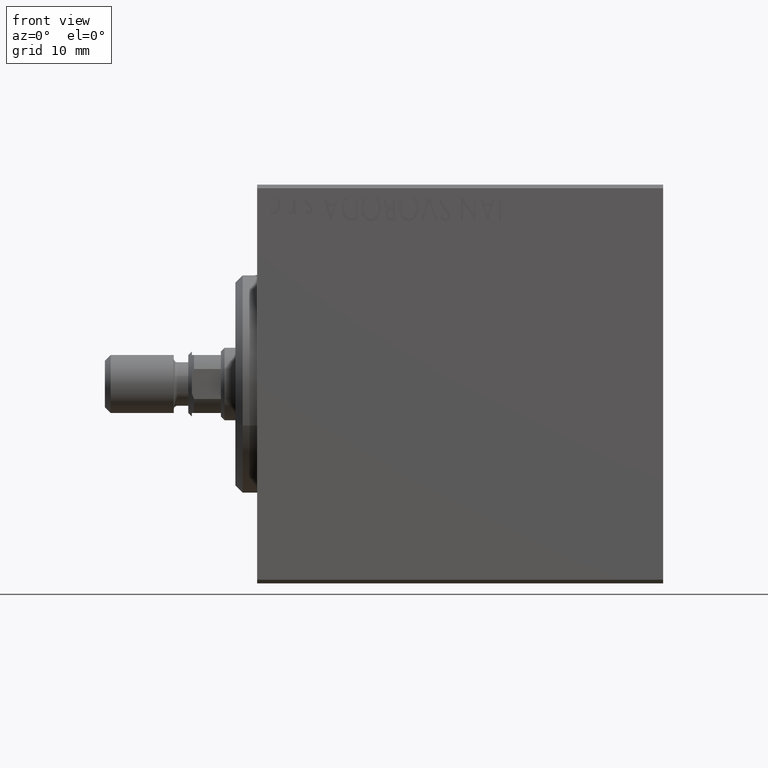
[diagram: clean part render]
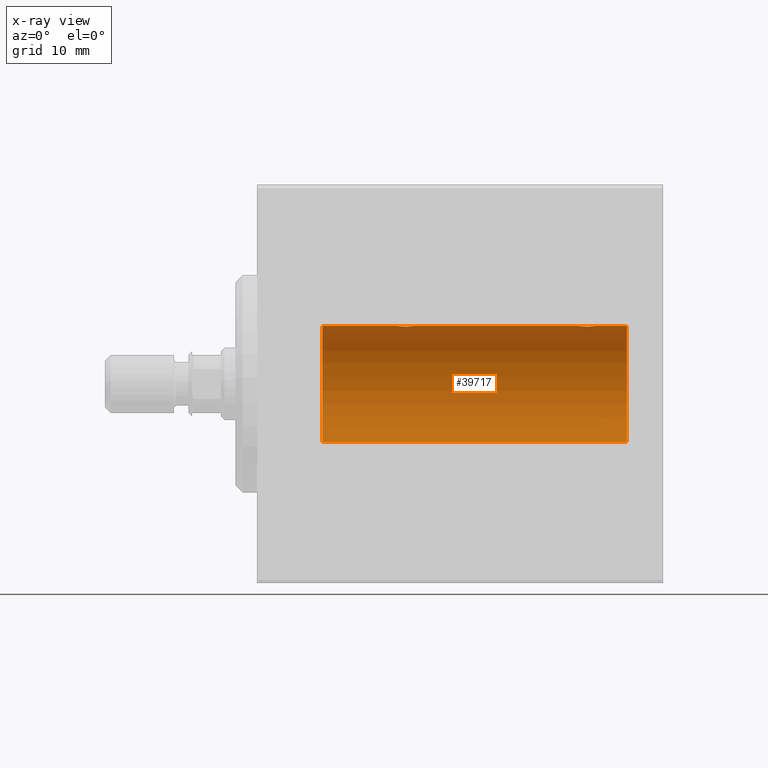
[diagram: x-ray — body ghosted, one internal face saturated and labeled with its STEP entity id]
A machine part, front view, then the same camera in x-ray: the body is ghosted and one INTERNAL B-rep face — a face not visible from any outside direction — is saturated and labeled: STEP entity #39717.
In plain terms, the highlighted cylindrical surface (partial cylindrical patch) has radius 8 mm, axis along (-1, -0, -0).
Its self-contained STEP definition (entity closure, byte-faithful):
#202 = CARTESIAN_POINT ( 'NONE',  ( 9.000000000000001776, 0.000000000000000000, 0.000000000000000000 ) ) ;
#319 = ORIENTED_EDGE ( 'NONE', *, *, #13127, .T. ) ;
#364 = VECTOR ( 'NONE', #24087, 1000.000000000000000 ) ;
#602 = EDGE_CURVE ( 'NONE', #44147, #28808, #40694, .T. ) ;
#1204 = CIRCLE ( 'NONE', #6967, 7.999999999999998224 ) ;
#1560 = CARTESIAN_POINT ( 'NONE',  ( 21.75000000000000355, -4.456549589723607084E-16, 7.999999999999998224 ) ) ;
#1866 = CARTESIAN_POINT ( 'NONE',  ( 44.25000000000000000, -4.052102368803510290E-23, 7.999999999999998224 ) ) ;
#2200 = CARTESIAN_POINT ( 'NONE',  ( 51.00000000000000000, 0.000000000000000000, 7.999999999999998224 ) ) ;
#2456 = CARTESIAN_POINT ( 'NONE',  ( 20.82849869077221427, 1.217000984963206411, 7.907141142849008375 ) ) ;
#2473 = CARTESIAN_POINT ( 'NONE',  ( 45.41880150506445091, 1.250030652953402210, 7.901735465557269578 ) ) ;
#2703 = CARTESIAN_POINT ( 'NONE',  ( 45.66380854908761933, 1.249938428426573989, 7.901750054830717573 ) ) ;
#3390 = CARTESIAN_POINT ( 'NONE',  ( 51.00000000000000000, 9.797174393178823685E-16, -7.999999999999998224 ) ) ;
#3707 = DIRECTION ( 'NONE',  ( -1.000000000000000000, -0.000000000000000000, -0.000000000000000000 ) ) ;
#4651 = ORIENTED_EDGE ( 'NONE', *, *, #24491, .T. ) ;
#5805 = LINE ( 'NONE', #2200, #35662 ) ;
#5848 = CARTESIAN_POINT ( 'NONE',  ( 19.25000000000000355, 0.08164616652084567827, 7.999999999999998224 ) ) ;
#5867 = CARTESIAN_POINT ( 'NONE',  ( 45.82849869077220717, 1.217000984963201304, 7.907141142849008375 ) ) ;
#6134 = B_SPLINE_CURVE_WITH_KNOTS ( 'NONE', 3,
 ( #43416, #40046, #12614, #26330, #12168, #36665, #22503, #5867, #2703, #2473, #30138, #26549, #40272, #39594, #23176, #36882, #43871, #13056, #26767, #40488, #32616, #27433 ),
 .UNSPECIFIED., .F., .F.,
 ( 4, 2, 2, 2, 2, 2, 2, 2, 2, 2, 4 ),
 ( 4.672339112836879896E-19, 0.0004892585179631255259, 0.0009785170359262506182, 0.001467775553889375710, 0.001957034071852500803, 0.002201663330834063240, 0.002446292589815625678, 0.002935551107778731472, 0.003424809625741836831, 0.003669438884723394065, 0.003914068143704951298 ),
 .UNSPECIFIED. ) ;
#6283 = CARTESIAN_POINT ( 'NONE',  ( 19.73260908389369916, 1.000368629246206842, 7.938072339095200824 ) ) ;
#6526 = DIRECTION ( 'NONE',  ( -1.000000000000000000, 0.000000000000000000, 0.000000000000000000 ) ) ;
#6722 = CARTESIAN_POINT ( 'NONE',  ( 19.25818474107593303, 0.1645871186493919058, 7.998709545350109806 ) ) ;
#6831 = CARTESIAN_POINT ( 'NONE',  ( 46.75000000000000000, 4.808978017572389289E-16, 7.999999999999998224 ) ) ;
#6967 = AXIS2_PLACEMENT_3D ( 'NONE', #20179, #17017, #20839 ) ;
#7438 = AXIS2_PLACEMENT_3D ( 'NONE', #202, #6526, #27875 ) ;
#8248 = ORIENTED_EDGE ( 'NONE', *, *, #41748, .T. ) ;
#9221 = CARTESIAN_POINT ( 'NONE',  ( 19.87017729360626106, 1.092113850918999596, 7.925358570881163800 ) ) ;
#9442 = CARTESIAN_POINT ( 'NONE',  ( 19.31391055412277424, 0.4029817482954556884, 7.990203133273724667 ) ) ;
#9656 = CARTESIAN_POINT ( 'NONE',  ( 21.12925165703738628, 1.092266057037472926, 7.925334523600930936 ) ) ;
#9880 = CARTESIAN_POINT ( 'NONE',  ( 51.00000000000000000, 0.000000000000000000, 7.999999999999998224 ) ) ;
#10362 = LINE ( 'NONE', #3390, #364 ) ;
#12168 = CARTESIAN_POINT ( 'NONE',  ( 46.49884501198090447, 0.7689725568822857182, 7.963798983873341619 ) ) ;
#12242 = CARTESIAN_POINT ( 'NONE',  ( 9.000000000000001776, 0.000000000000000000, 7.999999999999998224 ) ) ;
#12594 = CARTESIAN_POINT ( 'NONE',  ( 19.29023349479908234, 0.3250523954932723059, 7.993796610540221614 ) ) ;
#12614 = CARTESIAN_POINT ( 'NONE',  ( 46.71733208341542820, 0.3277916934117504622, 7.994719249713583942 ) ) ;
#12660 = ORIENTED_EDGE ( 'NONE', *, *, #14274, .F. ) ;
#13056 = CARTESIAN_POINT ( 'NONE',  ( 44.31391055412279201, 0.4029817482954564656, 7.990203133273721114 ) ) ;
#13127 = EDGE_CURVE ( 'NONE', #23609, #40569, #5805, .T. ) ;
#13344 = CARTESIAN_POINT ( 'NONE',  ( 9.000000000000001776, 9.797174393178823685E-16, -7.999999999999998224 ) ) ;
#13634 = DIRECTION ( 'NONE',  ( 0.000000000000000000, 0.000000000000000000, 1.000000000000000000 ) ) ;
#13853 = CYLINDRICAL_SURFACE ( 'NONE', #17619, 7.999999999999998224 ) ;
#13927 = CIRCLE ( 'NONE', #7438, 7.999999999999998224 ) ;
#14097 = CARTESIAN_POINT ( 'NONE',  ( 51.00000000000000000, 9.797174393178823685E-16, -7.999999999999998224 ) ) ;
#14274 = EDGE_CURVE ( 'NONE', #27457, #21206, #1204, .T. ) ;
#16188 = CARTESIAN_POINT ( 'NONE',  ( 20.09742586614092730, 1.186236229830391009, 7.911627449023368008 ) ) ;
#16413 = CARTESIAN_POINT ( 'NONE',  ( 20.66380854908764064, 1.249938428426576875, 7.901750054830715797 ) ) ;
#17017 = DIRECTION ( 'NONE',  ( -1.000000000000000000, 0.000000000000000000, 0.000000000000000000 ) ) ;
#17231 = CARTESIAN_POINT ( 'NONE',  ( 51.00000000000000000, 0.000000000000000000, 0.000000000000000000 ) ) ;
#17619 = AXIS2_PLACEMENT_3D ( 'NONE', #17231, #33870, #13634 ) ;
#19564 = CARTESIAN_POINT ( 'NONE',  ( 21.26853298044905571, 0.9991832710565865527, 7.938201675418737224 ) ) ;
#19876 = B_SPLINE_CURVE_WITH_KNOTS ( 'NONE', 3,
 ( #1560, #23826, #26533, #33275, #30788, #19564, #9656, #2456, #16413, #40251, #20232, #27195, #16188, #9221, #6283, #20014, #40912, #9442, #12594, #6722, #5848, #33497 ),
 .UNSPECIFIED., .F., .F.,
 ( 4, 2, 2, 2, 2, 2, 2, 2, 2, 2, 4 ),
 ( 4.329924337411337939E-19, 0.0004892585179631286701, 0.0009785170359262569065, 0.001467775553889385251, 0.001957034071852513379, 0.002201663330834072348, 0.002446292589815630882, 0.002935551107778739278, 0.003424809625741846806, 0.003669438884723403172, 0.003914068143704958237 ),
 .UNSPECIFIED. ) ;
#20002 = CARTESIAN_POINT ( 'NONE',  ( 21.75000000000000355, -4.456549589723607084E-16, 7.999999999999998224 ) ) ;
#20014 = CARTESIAN_POINT ( 'NONE',  ( 19.49968017762932604, 0.7674545364220058952, 7.963965305651045767 ) ) ;
#20179 = CARTESIAN_POINT ( 'NONE',  ( 51.00000000000000000, 0.000000000000000000, 0.000000000000000000 ) ) ;
#20232 = CARTESIAN_POINT ( 'NONE',  ( 20.33582908309688264, 1.241868426634445299, 7.903038949453011774 ) ) ;
#20433 = VERTEX_POINT ( 'NONE', #6831 ) ;
#20839 = DIRECTION ( 'NONE',  ( 0.000000000000000000, 0.000000000000000000, 1.000000000000000000 ) ) ;
#21206 = VERTEX_POINT ( 'NONE', #14097 ) ;
#21240 = CARTESIAN_POINT ( 'NONE',  ( 51.00000000000000000, 0.000000000000000000, 7.999999999999998224 ) ) ;
#22063 = ORIENTED_EDGE ( 'NONE', *, *, #602, .T. ) ;
#22503 = CARTESIAN_POINT ( 'NONE',  ( 46.12925165703737207, 1.092266057037467597, 7.925334523600929160 ) ) ;
#22964 = CARTESIAN_POINT ( 'NONE',  ( 19.25000000000000000, -4.052062925758249240E-23, 7.999999999999998224 ) ) ;
#23176 = CARTESIAN_POINT ( 'NONE',  ( 44.73260908389369916, 1.000368629246203511, 7.938072339095200824 ) ) ;
#23609 = VERTEX_POINT ( 'NONE', #1866 ) ;
#23826 = CARTESIAN_POINT ( 'NONE',  ( 21.75000000000000355, 0.1654536524218028770, 7.999999999999998224 ) ) ;
#24087 = DIRECTION ( 'NONE',  ( -1.000000000000000000, -0.000000000000000000, -0.000000000000000000 ) ) ;
#24491 = EDGE_CURVE ( 'NONE', #27457, #20433, #24837, .T. ) ;
#24554 = EDGE_LOOP ( 'NONE', ( #32400, #12660, #4651, #25717, #319, #8248, #22063, #37124 ) ) ;
#24837 = LINE ( 'NONE', #21240, #43795 ) ;
#25717 = ORIENTED_EDGE ( 'NONE', *, *, #36914, .T. ) ;
#26330 = CARTESIAN_POINT ( 'NONE',  ( 46.59173022154698174, 0.6304521543648616833, 7.976560245937300841 ) ) ;
#26533 = CARTESIAN_POINT ( 'NONE',  ( 21.71733208341543886, 0.3277916934117526826, 7.994719249713583942 ) ) ;
#26549 = CARTESIAN_POINT ( 'NONE',  ( 45.17540961683120315, 1.209888574283866314, 7.907997942808293601 ) ) ;
#26767 = CARTESIAN_POINT ( 'NONE',  ( 44.29023349479908234, 0.3250523954932718618, 7.993796610540221614 ) ) ;
#26903 = FACE_OUTER_BOUND ( 'NONE', #24554, .T. ) ;
#27195 = CARTESIAN_POINT ( 'NONE',  ( 20.17540961683119960, 1.209888574283869422, 7.907997942808293601 ) ) ;
#27433 = CARTESIAN_POINT ( 'NONE',  ( 44.25000000000000000, -4.052102368803510290E-23, 7.999999999999998224 ) ) ;
#27457 = VERTEX_POINT ( 'NONE', #40484 ) ;
#27875 = DIRECTION ( 'NONE',  ( 0.000000000000000000, 0.000000000000000000, 1.000000000000000000 ) ) ;
#28151 = VERTEX_POINT ( 'NONE', #13344 ) ;
#28808 = VERTEX_POINT ( 'NONE', #12242 ) ;
#30138 = CARTESIAN_POINT ( 'NONE',  ( 45.33582908309688975, 1.241868426634442413, 7.903038949453013551 ) ) ;
#30788 = CARTESIAN_POINT ( 'NONE',  ( 21.49884501198091868, 0.7689725568822877166, 7.963798983873343396 ) ) ;
#32400 = ORIENTED_EDGE ( 'NONE', *, *, #39954, .F. ) ;
#32616 = CARTESIAN_POINT ( 'NONE',  ( 44.24999999999999289, 0.08164616652084523418, 7.999999999999998224 ) ) ;
#33275 = CARTESIAN_POINT ( 'NONE',  ( 21.59173022154697819, 0.6304521543648646809, 7.976560245937302618 ) ) ;
#33497 = CARTESIAN_POINT ( 'NONE',  ( 19.25000000000000000, -4.052062925758249240E-23, 7.999999999999998224 ) ) ;
#33870 = DIRECTION ( 'NONE',  ( -1.000000000000000000, -0.000000000000000000, -0.000000000000000000 ) ) ;
#33934 = DIRECTION ( 'NONE',  ( -1.000000000000000000, -0.000000000000000000, -0.000000000000000000 ) ) ;
#35662 = VECTOR ( 'NONE', #36827, 1000.000000000000000 ) ;
#36665 = CARTESIAN_POINT ( 'NONE',  ( 46.26853298044904506, 0.9991832710565838882, 7.938201675418737224 ) ) ;
#36827 = DIRECTION ( 'NONE',  ( -1.000000000000000000, -0.000000000000000000, -0.000000000000000000 ) ) ;
#36882 = CARTESIAN_POINT ( 'NONE',  ( 44.49968017762932959, 0.7674545364220043409, 7.963965305651047544 ) ) ;
#36914 = EDGE_CURVE ( 'NONE', #20433, #23609, #6134, .T. ) ;
#37002 = EDGE_CURVE ( 'NONE', #28808, #28151, #13927, .T. ) ;
#37124 = ORIENTED_EDGE ( 'NONE', *, *, #37002, .T. ) ;
#37946 = VECTOR ( 'NONE', #33934, 1000.000000000000000 ) ;
#39594 = CARTESIAN_POINT ( 'NONE',  ( 44.87017729360625395, 1.092113850918997375, 7.925358570881165576 ) ) ;
#39717 = ADVANCED_FACE ( 'NONE', ( #26903 ), #13853, .F. ) ;
#39954 = EDGE_CURVE ( 'NONE', #21206, #28151, #10362, .T. ) ;
#40046 = CARTESIAN_POINT ( 'NONE',  ( 46.75000000000000711, 0.1654536524218027105, 7.999999999999998224 ) ) ;
#40251 = CARTESIAN_POINT ( 'NONE',  ( 20.41880150506445091, 1.250030652953405985, 7.901735465557267801 ) ) ;
#40272 = CARTESIAN_POINT ( 'NONE',  ( 45.09742586614095217, 1.186236229830388567, 7.911627449023366232 ) ) ;
#40484 = CARTESIAN_POINT ( 'NONE',  ( 51.00000000000000000, 0.000000000000000000, 7.999999999999998224 ) ) ;
#40488 = CARTESIAN_POINT ( 'NONE',  ( 44.25818474107592237, 0.1645871186493920446, 7.998709545350109806 ) ) ;
#40569 = VERTEX_POINT ( 'NONE', #20002 ) ;
#40694 = LINE ( 'NONE', #9880, #37946 ) ;
#40912 = CARTESIAN_POINT ( 'NONE',  ( 19.40795032378956009, 0.6298709050361928075, 7.976604806854521001 ) ) ;
#41748 = EDGE_CURVE ( 'NONE', #40569, #44147, #19876, .T. ) ;
#43416 = CARTESIAN_POINT ( 'NONE',  ( 46.75000000000000000, 4.808978017572389289E-16, 7.999999999999998224 ) ) ;
#43795 = VECTOR ( 'NONE', #3707, 1000.000000000000000 ) ;
#43871 = CARTESIAN_POINT ( 'NONE',  ( 44.40795032378956364, 0.6298709050361924744, 7.976604806854521001 ) ) ;
#44147 = VERTEX_POINT ( 'NONE', #22964 ) ;